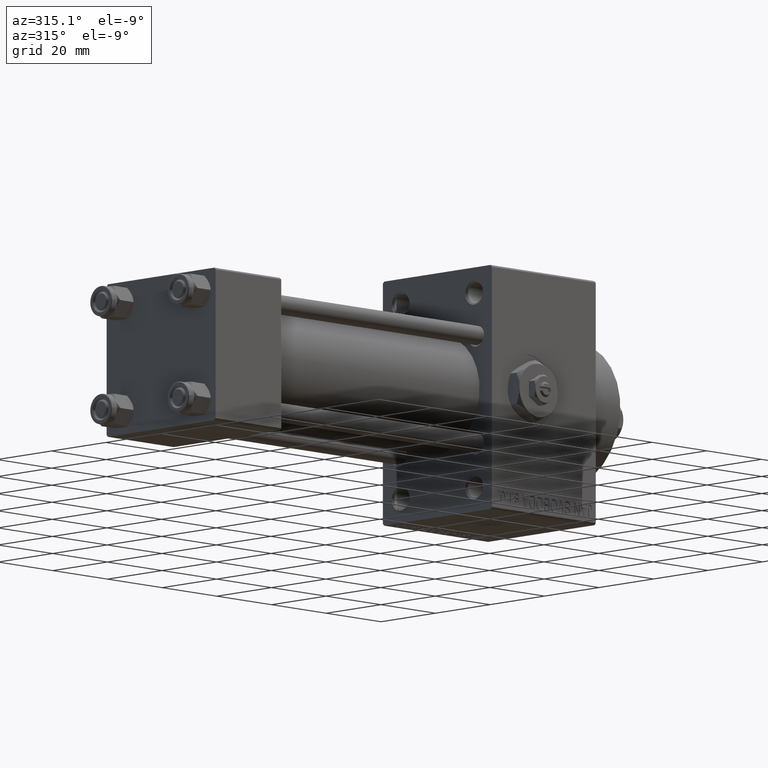
[diagram: clean part render]
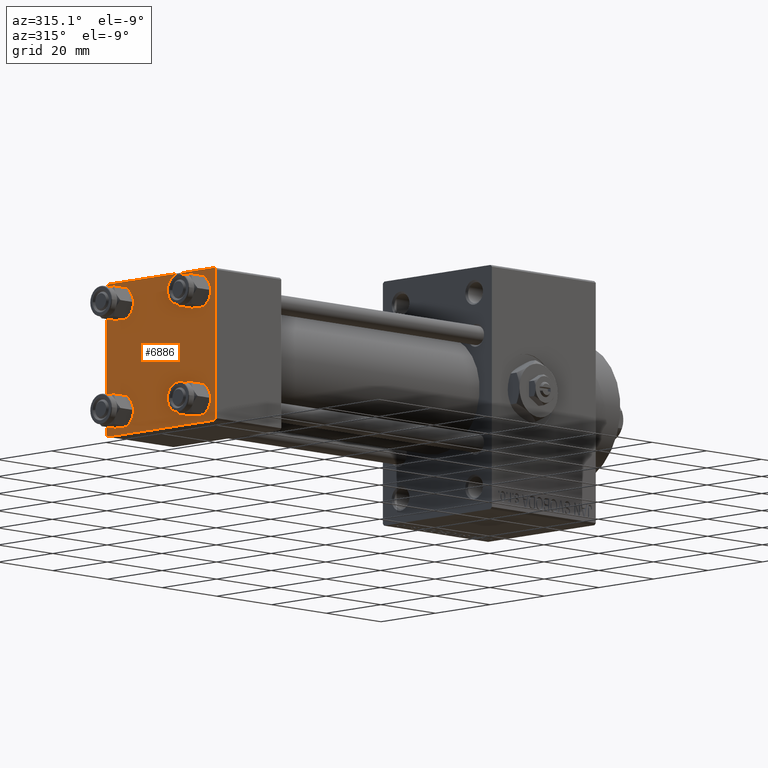
[diagram: same view with one face highlighted and labeled with its STEP entity id]
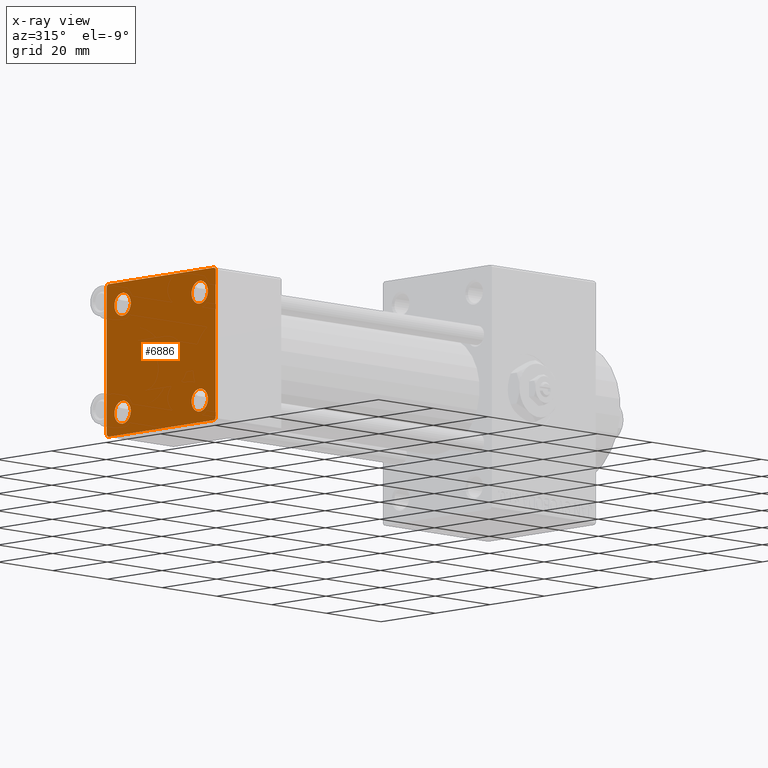
[diagram: x-ray of the same camera — body ghosted, the highlighted face saturated]
A machine part, auxiliary view. The second image highlights one B-rep face of the part: STEP entity #6886.
The next image is the same camera in x-ray: the body ghosted, the highlighted face saturated — about 0% of this face is hidden behind the body in this view.
In plain terms, the highlighted planar face has unit normal (-1, 0, 0).
Its self-contained STEP definition (entity closure, byte-faithful):
#37 = ORIENTED_EDGE ( 'NONE', *, *, #27804, .T. ) ;
#56 = DIRECTION ( 'NONE',  ( 0.000000000000000000, 0.000000000000000000, -1.000000000000000000 ) ) ;
#549 = EDGE_CURVE ( 'NONE', #34466, #9235, #10548, .T. ) ;
#741 = EDGE_LOOP ( 'NONE', ( #35018, #32838 ) ) ;
#1639 = DIRECTION ( 'NONE',  ( 0.000000000000000000, 0.000000000000000000, 1.000000000000000000 ) ) ;
#1801 = DIRECTION ( 'NONE',  ( 1.000000000000000000, 0.000000000000000000, 0.000000000000000000 ) ) ;
#2360 = AXIS2_PLACEMENT_3D ( 'NONE', #22562, #18109, #33230 ) ;
#2618 = EDGE_CURVE ( 'NONE', #28921, #7426, #27112, .T. ) ;
#3698 = EDGE_CURVE ( 'NONE', #9235, #38138, #19991, .T. ) ;
#3827 = ORIENTED_EDGE ( 'NONE', *, *, #11267, .T. ) ;
#3960 = VECTOR ( 'NONE', #5621, 1000.000000000000000 ) ;
#4187 = EDGE_CURVE ( 'NONE', #11174, #42670, #35602, .T. ) ;
#4500 = ORIENTED_EDGE ( 'NONE', *, *, #37005, .T. ) ;
#4595 = VERTEX_POINT ( 'NONE', #22504 ) ;
#4955 = CARTESIAN_POINT ( 'NONE',  ( 0.000000000000000000, 14.14999999999999858, 17.14999999999998437 ) ) ;
#4966 = EDGE_LOOP ( 'NONE', ( #20923, #10515 ) ) ;
#5621 = DIRECTION ( 'NONE',  ( 0.000000000000000000, -1.000000000000000000, 1.734723475976807094E-16 ) ) ;
#5830 = CIRCLE ( 'NONE', #45373, 3.000000000000004441 ) ;
#5887 = ORIENTED_EDGE ( 'NONE', *, *, #2618, .F. ) ;
#6006 = CARTESIAN_POINT ( 'NONE',  ( 0.000000000000000000, -14.14999999999999503, -14.15000000000000391 ) ) ;
#6068 = VECTOR ( 'NONE', #28490, 1000.000000000000000 ) ;
#6681 = CARTESIAN_POINT ( 'NONE',  ( 0.000000000000000000, -19.50000000000000711, -20.00000000000000000 ) ) ;
#6886 = ADVANCED_FACE ( 'NONE', ( #33147, #7125, #22231, #18262, #48204 ), #36848, .T. ) ;
#6914 = ORIENTED_EDGE ( 'NONE', *, *, #22706, .T. ) ;
#7056 = VERTEX_POINT ( 'NONE', #16504 ) ;
#7125 = FACE_BOUND ( 'NONE', #21693, .T. ) ;
#7426 = VERTEX_POINT ( 'NONE', #30954 ) ;
#7679 = CARTESIAN_POINT ( 'NONE',  ( 0.000000000000000000, 20.00000000000000000, -19.50000000000002132 ) ) ;
#7690 = DIRECTION ( 'NONE',  ( 0.000000000000000000, 0.000000000000000000, 1.000000000000000000 ) ) ;
#7918 = EDGE_CURVE ( 'NONE', #28694, #34115, #41391, .T. ) ;
#7943 = CARTESIAN_POINT ( 'NONE',  ( 0.000000000000000000, -20.00000000000000355, 19.49999999999998224 ) ) ;
#8207 = CIRCLE ( 'NONE', #31163, 2.999999999999983569 ) ;
#8218 = VERTEX_POINT ( 'NONE', #25064 ) ;
#8290 = DIRECTION ( 'NONE',  ( 0.000000000000000000, 8.673617379884036705E-17, -1.000000000000000000 ) ) ;
#8404 = CIRCLE ( 'NONE', #23421, 2.999999999999983569 ) ;
#8706 = DIRECTION ( 'NONE',  ( -0.000000000000000000, 0.7071067811865500152, 0.7071067811865451302 ) ) ;
#9235 = VERTEX_POINT ( 'NONE', #46198 ) ;
#9277 = EDGE_CURVE ( 'NONE', #4595, #44680, #42252, .T. ) ;
#9718 = ORIENTED_EDGE ( 'NONE', *, *, #18564, .T. ) ;
#9722 = CIRCLE ( 'NONE', #19238, 2.999999999999983569 ) ;
#10053 = DIRECTION ( 'NONE',  ( -0.000000000000000000, -0.7071067811865524577, -0.7071067811865426878 ) ) ;
#10296 = ORIENTED_EDGE ( 'NONE', *, *, #9277, .T. ) ;
#10404 = EDGE_CURVE ( 'NONE', #42670, #11174, #24774, .T. ) ;
#10515 = ORIENTED_EDGE ( 'NONE', *, *, #10404, .T. ) ;
#10548 = LINE ( 'NONE', #40997, #37094 ) ;
#10959 = CARTESIAN_POINT ( 'NONE',  ( 0.000000000000000000, -14.14999999999999503, 14.15000000000000391 ) ) ;
#11174 = VERTEX_POINT ( 'NONE', #12469 ) ;
#11267 = EDGE_CURVE ( 'NONE', #21941, #42625, #5830, .T. ) ;
#12290 = CARTESIAN_POINT ( 'NONE',  ( -0.000000000000000000, 19.75000000000013500, 19.74999999999986144 ) ) ;
#12469 = CARTESIAN_POINT ( 'NONE',  ( 0.000000000000000000, -14.14999999999999503, 17.14999999999998792 ) ) ;
#13600 = AXIS2_PLACEMENT_3D ( 'NONE', #39762, #46213, #1639 ) ;
#13844 = ORIENTED_EDGE ( 'NONE', *, *, #48367, .T. ) ;
#14231 = EDGE_LOOP ( 'NONE', ( #9718, #28809, #29123, #6914, #5887, #37, #28006, #10296 ) ) ;
#15275 = AXIS2_PLACEMENT_3D ( 'NONE', #41040, #24955, #33381 ) ;
#15914 = DIRECTION ( 'NONE',  ( 0.000000000000000000, -1.000000000000000000, -2.602085213965210149E-16 ) ) ;
#16047 = DIRECTION ( 'NONE',  ( 1.000000000000000000, 0.000000000000000000, 0.000000000000000000 ) ) ;
#16504 = CARTESIAN_POINT ( 'NONE',  ( 0.000000000000000000, 14.14999999999999858, 11.15000000000001990 ) ) ;
#16651 = CARTESIAN_POINT ( 'NONE',  ( 0.000000000000000000, -14.14999999999999503, -11.15000000000000036 ) ) ;
#17623 = CARTESIAN_POINT ( 'NONE',  ( 0.000000000000000000, -14.14999999999999503, 11.15000000000002345 ) ) ;
#18109 = DIRECTION ( 'NONE',  ( 1.000000000000000000, 0.000000000000000000, 0.000000000000000000 ) ) ;
#18262 = FACE_BOUND ( 'NONE', #35263, .T. ) ;
#18564 = EDGE_CURVE ( 'NONE', #44680, #34466, #29329, .T. ) ;
#18713 = EDGE_CURVE ( 'NONE', #4595, #8218, #31029, .T. ) ;
#19238 = AXIS2_PLACEMENT_3D ( 'NONE', #34437, #30732, #7690 ) ;
#19250 = CARTESIAN_POINT ( 'NONE',  ( 0.000000000000000000, 14.14999999999999858, 14.15000000000000036 ) ) ;
#19551 = VECTOR ( 'NONE', #15914, 1000.000000000000000 ) ;
#19991 = LINE ( 'NONE', #24668, #3960 ) ;
#20739 = EDGE_CURVE ( 'NONE', #28363, #7056, #8404, .T. ) ;
#20923 = ORIENTED_EDGE ( 'NONE', *, *, #4187, .T. ) ;
#21693 = EDGE_LOOP ( 'NONE', ( #13844, #3827 ) ) ;
#21941 = VERTEX_POINT ( 'NONE', #43655 ) ;
#22231 = FACE_BOUND ( 'NONE', #741, .T. ) ;
#22504 = CARTESIAN_POINT ( 'NONE',  ( 0.000000000000000000, 19.50000000000000000, 20.00000000000000000 ) ) ;
#22562 = CARTESIAN_POINT ( 'NONE',  ( 0.000000000000000000, -14.14999999999999503, 14.15000000000000391 ) ) ;
#22706 = EDGE_CURVE ( 'NONE', #38138, #7426, #43330, .T. ) ;
#22858 = CARTESIAN_POINT ( 'NONE',  ( 0.000000000000000000, 20.00000000000000000, 20.00000000000000000 ) ) ;
#23421 = AXIS2_PLACEMENT_3D ( 'NONE', #19250, #33875, #45963 ) ;
#24250 = CIRCLE ( 'NONE', #30589, 3.000000000000004441 ) ;
#24668 = CARTESIAN_POINT ( 'NONE',  ( 0.000000000000000000, 20.00000000000000000, -20.00000000000000711 ) ) ;
#24774 = CIRCLE ( 'NONE', #47696, 2.999999999999983569 ) ;
#24955 = DIRECTION ( 'NONE',  ( -1.000000000000000000, 0.000000000000000000, -0.000000000000000000 ) ) ;
#25064 = CARTESIAN_POINT ( 'NONE',  ( 0.000000000000000000, -19.49999999999999289, 19.99999999999998934 ) ) ;
#25660 = DIRECTION ( 'NONE',  ( 1.000000000000000000, 0.000000000000000000, 0.000000000000000000 ) ) ;
#25905 = DIRECTION ( 'NONE',  ( 0.000000000000000000, 0.000000000000000000, 1.000000000000000000 ) ) ;
#26816 = CARTESIAN_POINT ( 'NONE',  ( 0.000000000000000000, 20.00000000000000000, 20.00000000000000000 ) ) ;
#27112 = LINE ( 'NONE', #42210, #31583 ) ;
#27539 = LINE ( 'NONE', #42623, #32344 ) ;
#27804 = EDGE_CURVE ( 'NONE', #28921, #8218, #27539, .T. ) ;
#28006 = ORIENTED_EDGE ( 'NONE', *, *, #18713, .F. ) ;
#28083 = DIRECTION ( 'NONE',  ( 0.000000000000000000, 0.000000000000000000, 1.000000000000000000 ) ) ;
#28363 = VERTEX_POINT ( 'NONE', #4955 ) ;
#28490 = DIRECTION ( 'NONE',  ( 0.000000000000000000, -0.7071067811865401342, 0.7071067811865549002 ) ) ;
#28694 = VERTEX_POINT ( 'NONE', #41980 ) ;
#28809 = ORIENTED_EDGE ( 'NONE', *, *, #549, .T. ) ;
#28921 = VERTEX_POINT ( 'NONE', #7943 ) ;
#29123 = ORIENTED_EDGE ( 'NONE', *, *, #3698, .T. ) ;
#29329 = LINE ( 'NONE', #22858, #43217 ) ;
#30589 = AXIS2_PLACEMENT_3D ( 'NONE', #37851, #16047, #42295 ) ;
#30732 = DIRECTION ( 'NONE',  ( 1.000000000000000000, 0.000000000000000000, 0.000000000000000000 ) ) ;
#30954 = CARTESIAN_POINT ( 'NONE',  ( 0.000000000000000000, -20.00000000000000000, -19.49999999999999645 ) ) ;
#31029 = LINE ( 'NONE', #26816, #19551 ) ;
#31163 = AXIS2_PLACEMENT_3D ( 'NONE', #32859, #25660, #25905 ) ;
#31583 = VECTOR ( 'NONE', #8290, 1000.000000000000000 ) ;
#32344 = VECTOR ( 'NONE', #8706, 1000.000000000000114 ) ;
#32838 = ORIENTED_EDGE ( 'NONE', *, *, #7918, .T. ) ;
#32859 = CARTESIAN_POINT ( 'NONE',  ( 0.000000000000000000, 14.14999999999999858, -14.15000000000000036 ) ) ;
#33147 = FACE_BOUND ( 'NONE', #4966, .T. ) ;
#33230 = DIRECTION ( 'NONE',  ( 0.000000000000000000, 0.000000000000000000, 1.000000000000000000 ) ) ;
#33381 = DIRECTION ( 'NONE',  ( -0.000000000000000000, 0.000000000000000000, 1.000000000000000000 ) ) ;
#33669 = ORIENTED_EDGE ( 'NONE', *, *, #20739, .T. ) ;
#33875 = DIRECTION ( 'NONE',  ( 1.000000000000000000, 0.000000000000000000, 0.000000000000000000 ) ) ;
#34115 = VERTEX_POINT ( 'NONE', #36980 ) ;
#34437 = CARTESIAN_POINT ( 'NONE',  ( 0.000000000000000000, 14.14999999999999858, 14.15000000000000036 ) ) ;
#34466 = VERTEX_POINT ( 'NONE', #7679 ) ;
#35018 = ORIENTED_EDGE ( 'NONE', *, *, #42217, .T. ) ;
#35263 = EDGE_LOOP ( 'NONE', ( #33669, #4500 ) ) ;
#35602 = CIRCLE ( 'NONE', #2360, 2.999999999999983569 ) ;
#36848 = PLANE ( 'NONE',  #15275 ) ;
#36980 = CARTESIAN_POINT ( 'NONE',  ( 0.000000000000000000, 14.14999999999999858, -11.15000000000001812 ) ) ;
#37005 = EDGE_CURVE ( 'NONE', #7056, #28363, #9722, .T. ) ;
#37094 = VECTOR ( 'NONE', #10053, 1000.000000000000000 ) ;
#37808 = DIRECTION ( 'NONE',  ( 0.000000000000000000, 0.7071067811865425767, -0.7071067811865525687 ) ) ;
#37851 = CARTESIAN_POINT ( 'NONE',  ( 0.000000000000000000, -14.14999999999999503, -14.15000000000000391 ) ) ;
#38138 = VERTEX_POINT ( 'NONE', #6681 ) ;
#39762 = CARTESIAN_POINT ( 'NONE',  ( 0.000000000000000000, 14.14999999999999858, -14.15000000000000036 ) ) ;
#40551 = VECTOR ( 'NONE', #37808, 999.9999999999998863 ) ;
#40997 = CARTESIAN_POINT ( 'NONE',  ( -0.000000000000000000, 19.74999999999986855, -19.75000000000014211 ) ) ;
#41040 = CARTESIAN_POINT ( 'NONE',  ( 0.000000000000000000, 0.000000000000000000, 0.000000000000000000 ) ) ;
#41391 = CIRCLE ( 'NONE', #13600, 2.999999999999983569 ) ;
#41749 = CARTESIAN_POINT ( 'NONE',  ( 0.000000000000000000, 20.00000000000000000, 19.49999999999999289 ) ) ;
#41980 = CARTESIAN_POINT ( 'NONE',  ( 0.000000000000000000, 14.14999999999999858, -17.14999999999998437 ) ) ;
#42210 = CARTESIAN_POINT ( 'NONE',  ( 0.000000000000000000, -20.00000000000000355, 19.99999999999998934 ) ) ;
#42217 = EDGE_CURVE ( 'NONE', #34115, #28694, #8207, .T. ) ;
#42252 = LINE ( 'NONE', #12290, #40551 ) ;
#42295 = DIRECTION ( 'NONE',  ( 0.000000000000000000, 0.000000000000000000, 1.000000000000000000 ) ) ;
#42623 = CARTESIAN_POINT ( 'NONE',  ( -0.000000000000000000, -19.74999999999992539, 19.75000000000006395 ) ) ;
#42625 = VERTEX_POINT ( 'NONE', #16651 ) ;
#42670 = VERTEX_POINT ( 'NONE', #17623 ) ;
#43217 = VECTOR ( 'NONE', #56, 1000.000000000000000 ) ;
#43330 = LINE ( 'NONE', #44307, #6068 ) ;
#43655 = CARTESIAN_POINT ( 'NONE',  ( 0.000000000000000000, -14.14999999999999503, -17.15000000000000924 ) ) ;
#44307 = CARTESIAN_POINT ( 'NONE',  ( 0.000000000000000000, -19.75000000000020961, -19.74999999999979394 ) ) ;
#44393 = DIRECTION ( 'NONE',  ( 1.000000000000000000, 0.000000000000000000, 0.000000000000000000 ) ) ;
#44680 = VERTEX_POINT ( 'NONE', #41749 ) ;
#44883 = DIRECTION ( 'NONE',  ( 0.000000000000000000, 0.000000000000000000, 1.000000000000000000 ) ) ;
#45373 = AXIS2_PLACEMENT_3D ( 'NONE', #6006, #1801, #28083 ) ;
#45963 = DIRECTION ( 'NONE',  ( 0.000000000000000000, 0.000000000000000000, 1.000000000000000000 ) ) ;
#46198 = CARTESIAN_POINT ( 'NONE',  ( 0.000000000000000000, 19.50000000000000711, -20.00000000000000711 ) ) ;
#46213 = DIRECTION ( 'NONE',  ( 1.000000000000000000, 0.000000000000000000, 0.000000000000000000 ) ) ;
#47696 = AXIS2_PLACEMENT_3D ( 'NONE', #10959, #44393, #44883 ) ;
#48204 = FACE_OUTER_BOUND ( 'NONE', #14231, .T. ) ;
#48367 = EDGE_CURVE ( 'NONE', #42625, #21941, #24250, .T. ) ;